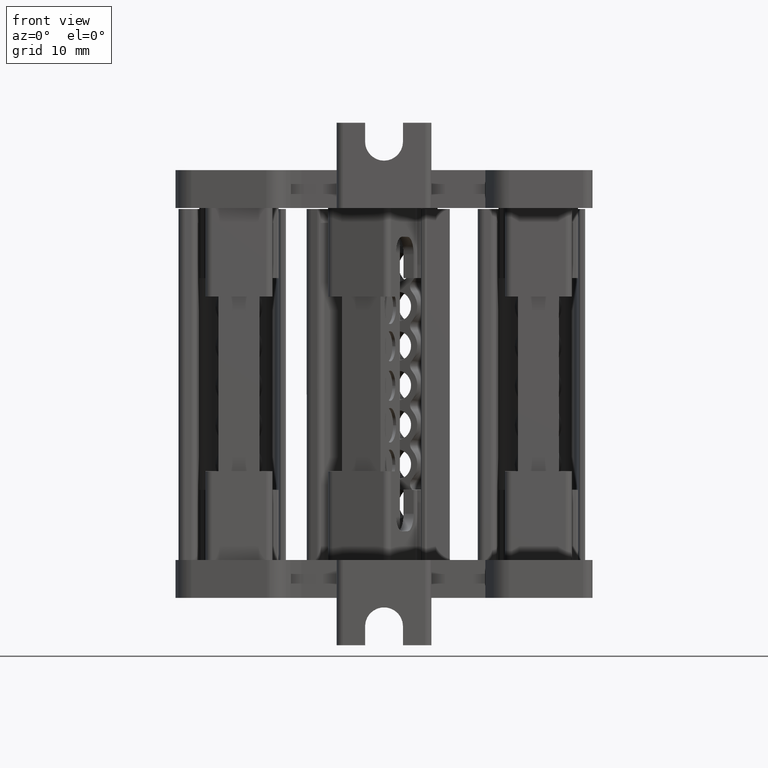
[diagram: clean part render]
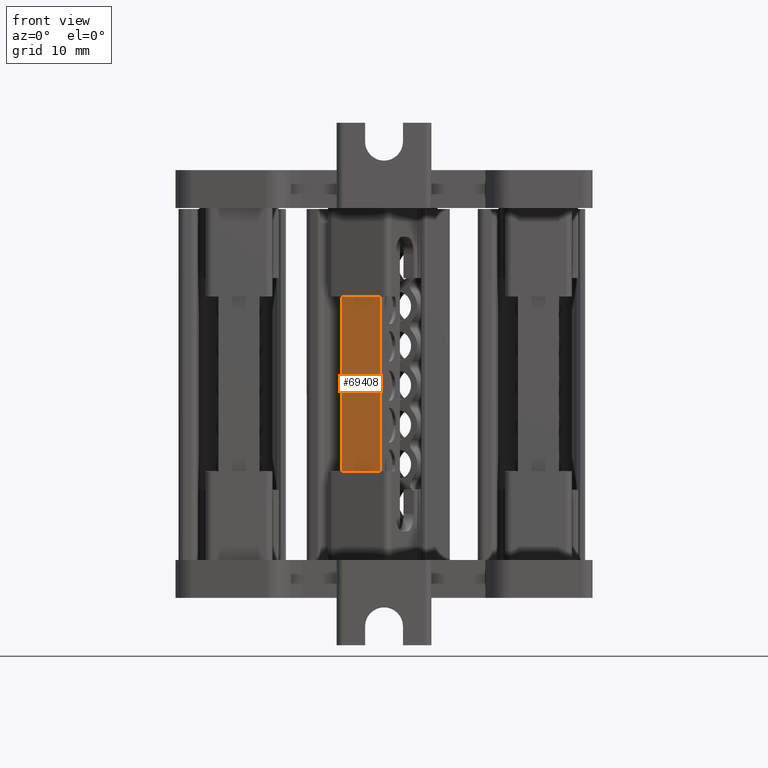
[diagram: same view with one face highlighted and labeled with its STEP entity id]
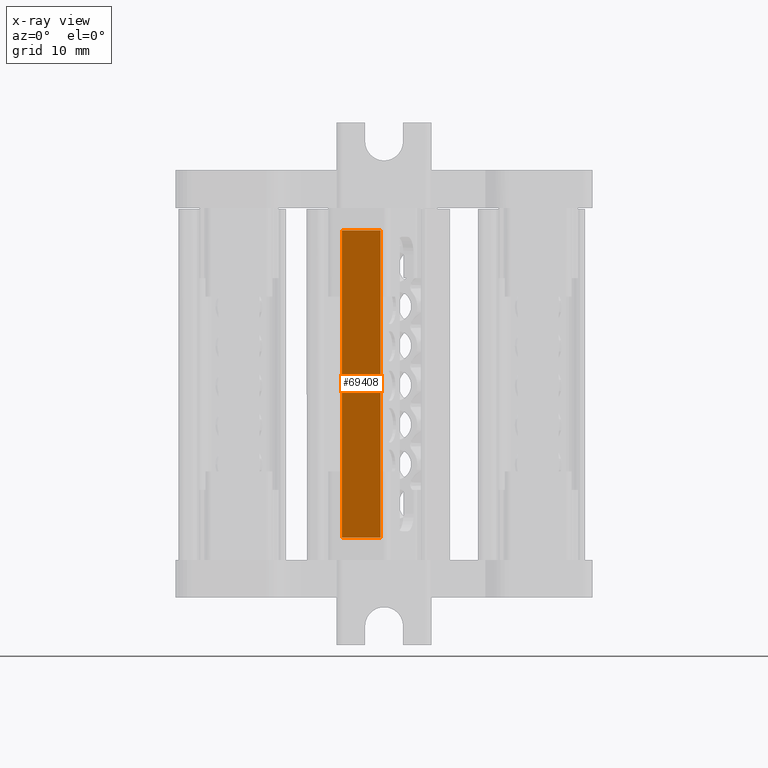
[diagram: x-ray of the same camera — body ghosted, the highlighted face saturated]
A machine part, front view. The second image highlights one B-rep face of the part: STEP entity #69408.
The next image is the same camera in x-ray: the body ghosted, the highlighted face saturated — about 0% of this face is hidden behind the body in this view.
In plain terms, the highlighted planar face has unit normal (0.342, 0.9397, 0).
Its self-contained STEP definition (entity closure, byte-faithful):
#6751 = FACE_OUTER_BOUND ( 'NONE', #78381, .T. ) ;
#6830 = DIRECTION ( 'NONE',  ( 0.3420192031328226400, 0.9396929629875862000, 1.418629504901142200E-012 ) ) ;
#6831 = DIRECTION ( 'NONE',  ( -0.9396929629875862000, 0.3420192031328226400, 0.0000000000000000000 ) ) ;
#6833 = PLANE ( 'NONE',  #23608 ) ;
#6841 = CARTESIAN_POINT ( 'NONE',  ( -298.4585595001223100, 204.0373489690668700, 96.78362721579405600 ) ) ;
#14485 = VECTOR ( 'NONE', #91506, 1000.000000000000000 ) ;
#23608 = AXIS2_PLACEMENT_3D ( 'NONE', #6841, #6830, #6831 ) ;
#28935 = CARTESIAN_POINT ( 'NONE',  ( -298.4585595001223100, 204.0373489690668700, 96.78362721579719600 ) ) ;
#28959 = LINE ( 'NONE', #28935, #33359 ) ;
#28965 = DIRECTION ( 'NONE',  ( 0.9396929629875862000, -0.3420192031328226400, -0.0000000000000000000 ) ) ;
#29847 = VECTOR ( 'NONE', #47731, 1000.000000000000000 ) ;
#29928 = VECTOR ( 'NONE', #47950, 1000.000000000000000 ) ;
#33359 = VECTOR ( 'NONE', #28965, 1000.000000000000000 ) ;
#36652 = VERTEX_POINT ( 'NONE', #85449 ) ;
#36693 = VERTEX_POINT ( 'NONE', #85451 ) ;
#47689 = CARTESIAN_POINT ( 'NONE',  ( -304.5665637595637900, 206.2604737894382900, 96.78362721579405600 ) ) ;
#47707 = LINE ( 'NONE', #47689, #29847 ) ;
#47731 = DIRECTION ( 'NONE',  ( -4.851985328069992300E-013, -1.333076162842166600E-012, 1.000000000000000000 ) ) ;
#47950 = DIRECTION ( 'NONE',  ( 4.556611130189810500E-013, -1.658465657525901400E-013, 1.000000000000000000 ) ) ;
#47980 = CARTESIAN_POINT ( 'NONE',  ( -298.4585595000987200, 204.0373489691317300, 96.78362721580680300 ) ) ;
#47992 = LINE ( 'NONE', #47980, #29928 ) ;
#50632 = CARTESIAN_POINT ( 'NONE',  ( -304.5665637595402000, 206.2604737895031500, 48.14122990646644200 ) ) ;
#50988 = CARTESIAN_POINT ( 'NONE',  ( -298.4585595001208300, 204.0373489691397400, 48.14122990646645700 ) ) ;
#60679 = EDGE_CURVE ( 'NONE', #77649, #75004, #91513, .T. ) ;
#69408 = ADVANCED_FACE ( 'NONE', ( #6751 ), #6833, .F. ) ;
#71122 = EDGE_CURVE ( 'NONE', #36693, #36652, #28959, .T. ) ;
#72286 = EDGE_CURVE ( 'NONE', #75004, #36693, #47707, .T. ) ;
#72459 = EDGE_CURVE ( 'NONE', #77649, #36652, #47992, .T. ) ;
#75004 = VERTEX_POINT ( 'NONE', #50632 ) ;
#77649 = VERTEX_POINT ( 'NONE', #50988 ) ;
#78381 = EDGE_LOOP ( 'NONE', ( #83473, #83400, #83429, #83444 ) ) ;
#83400 = ORIENTED_EDGE ( 'NONE', *, *, #71122, .F. ) ;
#83429 = ORIENTED_EDGE ( 'NONE', *, *, #72286, .F. ) ;
#83444 = ORIENTED_EDGE ( 'NONE', *, *, #60679, .F. ) ;
#83473 = ORIENTED_EDGE ( 'NONE', *, *, #72459, .T. ) ;
#85449 = CARTESIAN_POINT ( 'NONE',  ( -298.4585595001065000, 204.0373489691101000, 96.78362721579510700 ) ) ;
#85451 = CARTESIAN_POINT ( 'NONE',  ( -304.5665637595485600, 206.2604737894572200, 96.78362721579719600 ) ) ;
#91506 = DIRECTION ( 'NONE',  ( -0.9396929629875870900, 0.3420192031328203000, -2.135044278125280400E-015 ) ) ;
#91513 = LINE ( 'NONE', #91532, #14485 ) ;
#91532 = CARTESIAN_POINT ( 'NONE',  ( -298.4585595001208300, 204.0373489691397700, 48.14122990646645700 ) ) ;